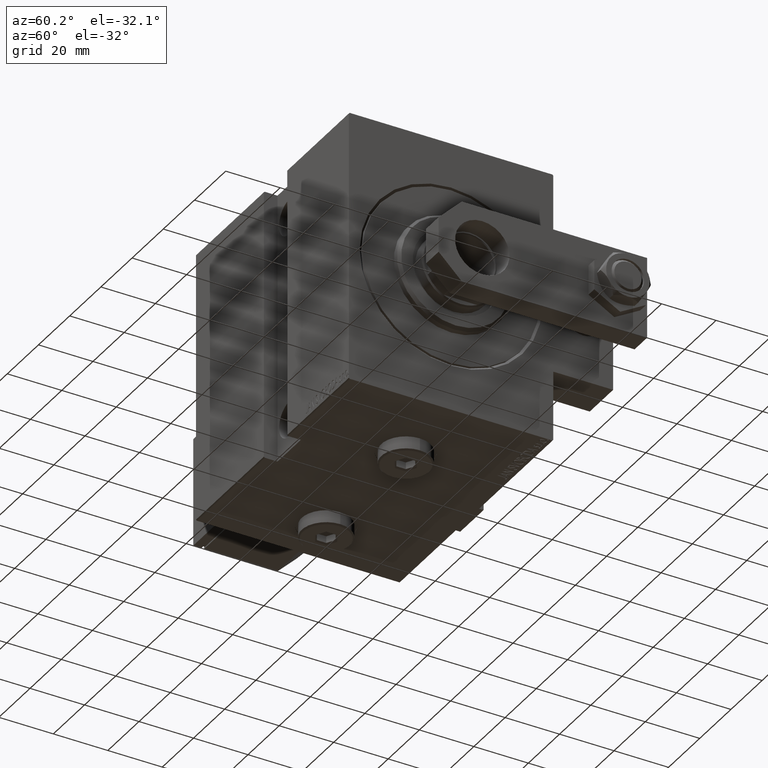
[diagram: clean part render]
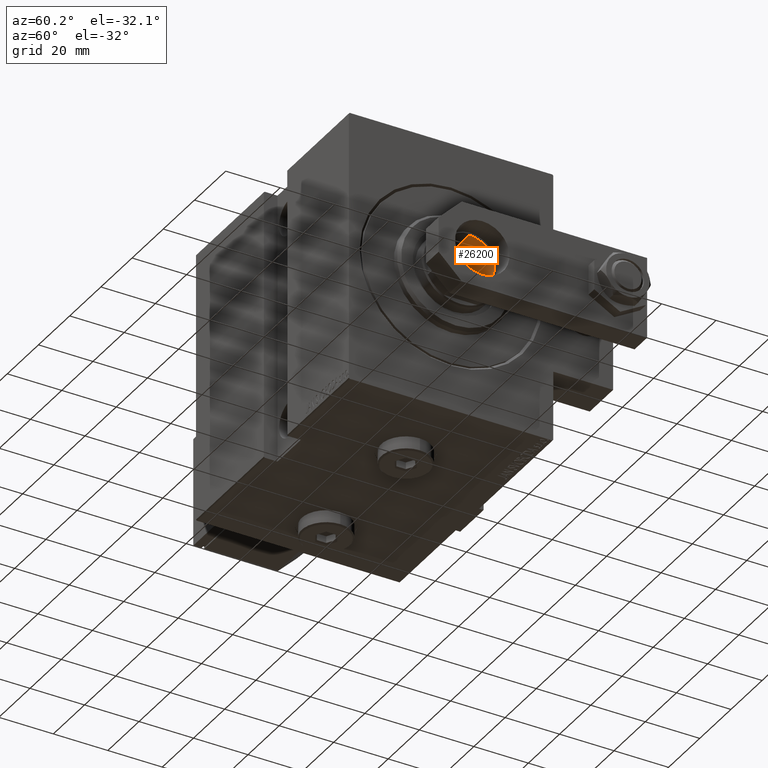
[diagram: same view with one face highlighted and labeled with its STEP entity id]
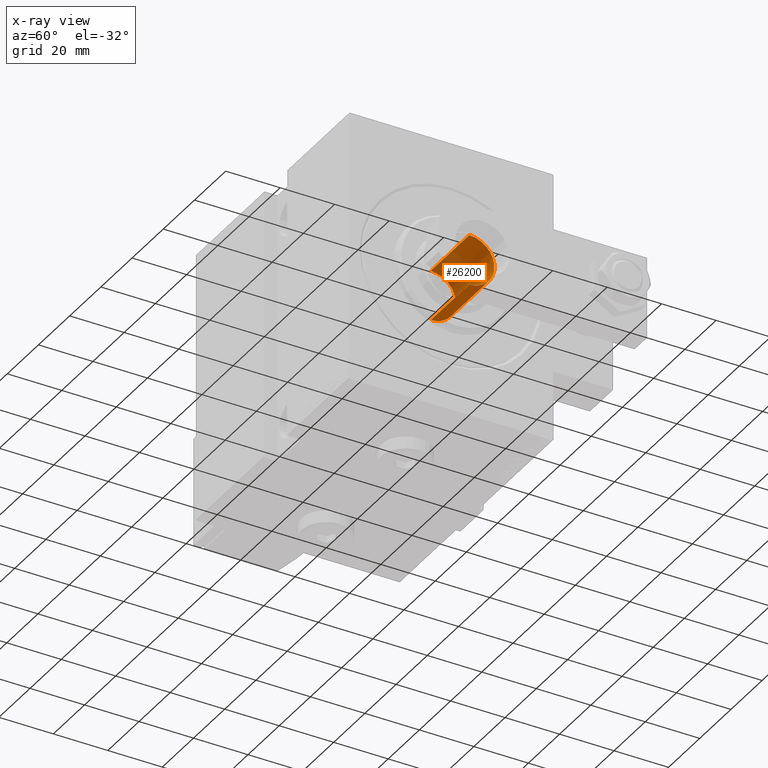
[diagram: x-ray of the same camera — body ghosted, the highlighted face saturated]
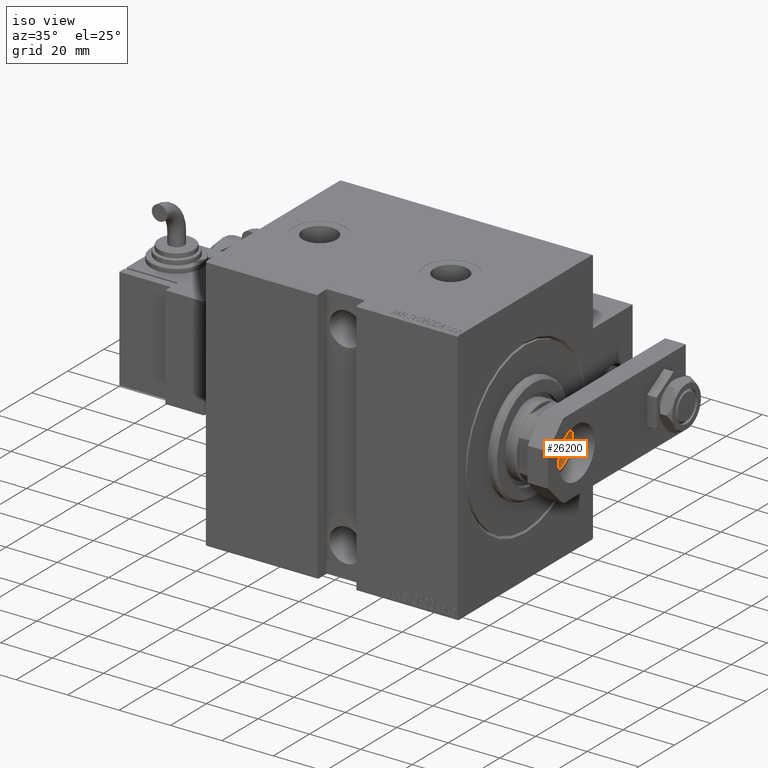
[diagram: same view with one face highlighted and labeled with its STEP entity id]
A machine part, auxiliary view. The second image highlights one B-rep face of the part: STEP entity #26200.
The next image is the same camera in x-ray: the body ghosted, the highlighted face saturated — about 37% of this face is hidden behind the body in this view.
A second angle (iso view) of the same face is appended — the face is thin or edge-on in the first view.
In plain terms, the highlighted cylindrical surface (edge-blend (fillet) strip) has radius 9.25 mm, axis along (1, 0, -0).
Its self-contained STEP definition (entity closure, byte-faithful):
#2302 = DIRECTION ( 'NONE',  ( 1.000000000000000000, 0.000000000000000000, 0.000000000000000000 ) ) ;
#5348 = EDGE_CURVE ( 'NONE', #47287, #8001, #21806, .T. ) ;
#5829 = DIRECTION ( 'NONE',  ( -0.000000000000000000, -0.000000000000000000, 1.000000000000000000 ) ) ;
#6080 = CYLINDRICAL_SURFACE ( 'NONE', #42368, 9.249999999999994671 ) ;
#8001 = VERTEX_POINT ( 'NONE', #8662 ) ;
#8093 = VERTEX_POINT ( 'NONE', #34838 ) ;
#8662 = CARTESIAN_POINT ( 'NONE',  ( -9.249999999999994671, 1.132798289211300909E-15, 95.70000000000000284 ) ) ;
#9221 = VECTOR ( 'NONE', #14236, 1000.000000000000000 ) ;
#10344 = FACE_OUTER_BOUND ( 'NONE', #41295, .T. ) ;
#10361 = CARTESIAN_POINT ( 'NONE',  ( 0.000000000000000000, 0.000000000000000000, 95.70000000000000284 ) ) ;
#11002 = CARTESIAN_POINT ( 'NONE',  ( 9.249999999999994671, 0.000000000000000000, 96.00000000000000000 ) ) ;
#11766 = AXIS2_PLACEMENT_3D ( 'NONE', #10361, #49362, #48611 ) ;
#12530 = ORIENTED_EDGE ( 'NONE', *, *, #16145, .T. ) ;
#14236 = DIRECTION ( 'NONE',  ( -0.000000000000000000, -0.000000000000000000, 1.000000000000000000 ) ) ;
#16145 = EDGE_CURVE ( 'NONE', #8093, #18975, #45474, .T. ) ;
#18975 = VERTEX_POINT ( 'NONE', #45243 ) ;
#21208 = ORIENTED_EDGE ( 'NONE', *, *, #28095, .F. ) ;
#21317 = CARTESIAN_POINT ( 'NONE',  ( -9.249999999999994671, 1.132798289211300909E-15, 96.00000000000000000 ) ) ;
#21806 = LINE ( 'NONE', #21317, #9221 ) ;
#21860 = ORIENTED_EDGE ( 'NONE', *, *, #5348, .F. ) ;
#24018 = EDGE_CURVE ( 'NONE', #18975, #8001, #33468, .T. ) ;
#24077 = CARTESIAN_POINT ( 'NONE',  ( -9.249999999999994671, 1.132798289211300909E-15, 71.00000000000001421 ) ) ;
#25594 = ORIENTED_EDGE ( 'NONE', *, *, #24018, .T. ) ;
#26200 = ADVANCED_FACE ( 'NONE', ( #10344 ), #6080, .F. ) ;
#27348 = DIRECTION ( 'NONE',  ( -0.000000000000000000, -0.000000000000000000, 1.000000000000000000 ) ) ;
#28086 = DIRECTION ( 'NONE',  ( 1.000000000000000000, 0.000000000000000000, 0.000000000000000000 ) ) ;
#28095 = EDGE_CURVE ( 'NONE', #8093, #47287, #43948, .T. ) ;
#29395 = DIRECTION ( 'NONE',  ( -0.000000000000000000, -0.000000000000000000, 1.000000000000000000 ) ) ;
#31106 = CARTESIAN_POINT ( 'NONE',  ( 0.000000000000000000, 0.000000000000000000, 71.00000000000001421 ) ) ;
#33468 = CIRCLE ( 'NONE', #11766, 9.249999999999994671 ) ;
#34838 = CARTESIAN_POINT ( 'NONE',  ( 9.249999999999994671, 0.000000000000000000, 71.00000000000001421 ) ) ;
#35600 = VECTOR ( 'NONE', #29395, 1000.000000000000000 ) ;
#36774 = CARTESIAN_POINT ( 'NONE',  ( 0.000000000000000000, 0.000000000000000000, 96.00000000000000000 ) ) ;
#41295 = EDGE_LOOP ( 'NONE', ( #21860, #21208, #12530, #25594 ) ) ;
#42368 = AXIS2_PLACEMENT_3D ( 'NONE', #36774, #5829, #2302 ) ;
#43948 = CIRCLE ( 'NONE', #46354, 9.249999999999994671 ) ;
#45243 = CARTESIAN_POINT ( 'NONE',  ( 9.249999999999994671, 0.000000000000000000, 95.70000000000000284 ) ) ;
#45474 = LINE ( 'NONE', #11002, #35600 ) ;
#46354 = AXIS2_PLACEMENT_3D ( 'NONE', #31106, #27348, #28086 ) ;
#47287 = VERTEX_POINT ( 'NONE', #24077 ) ;
#48611 = DIRECTION ( 'NONE',  ( 1.000000000000000000, 0.000000000000000000, 0.000000000000000000 ) ) ;
#49362 = DIRECTION ( 'NONE',  ( 0.000000000000000000, 0.000000000000000000, 1.000000000000000000 ) ) ;